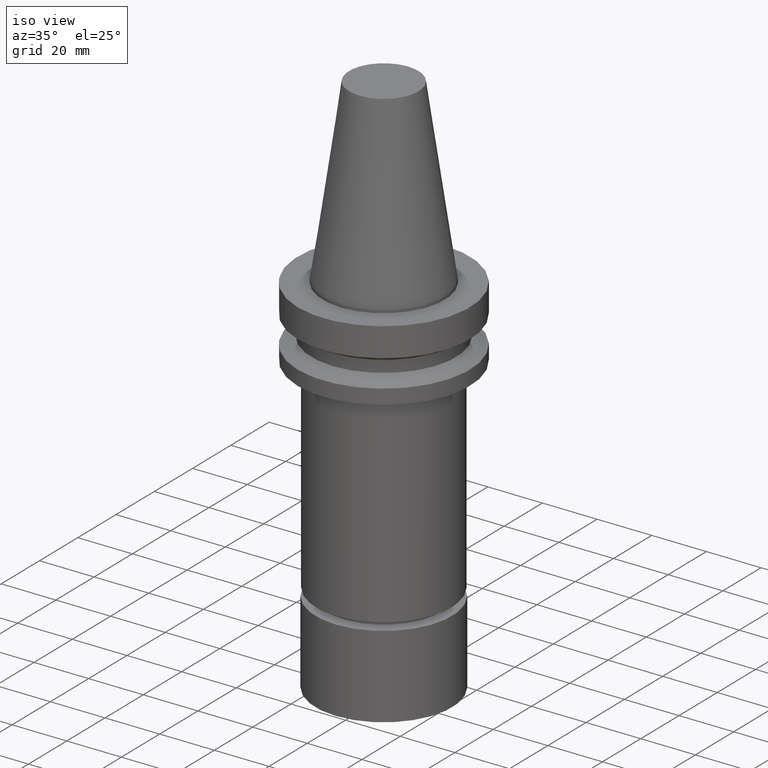
[diagram: clean part render]
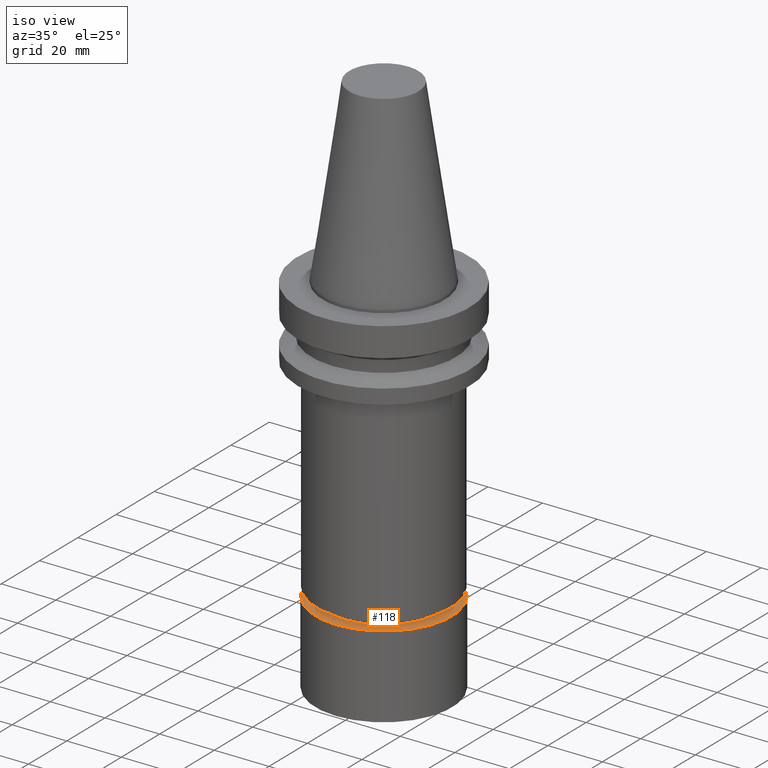
[diagram: same view with one face highlighted and labeled with its STEP entity id]
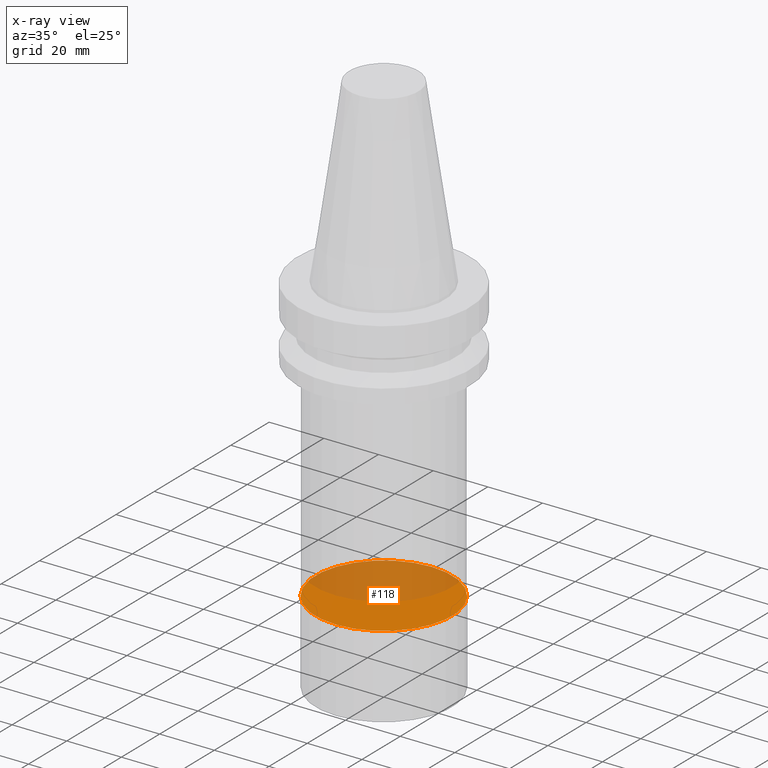
[diagram: x-ray of the same camera — body ghosted, the highlighted face saturated]
A machine part, iso view. The second image highlights one B-rep face of the part: STEP entity #118.
The next image is the same camera in x-ray: the body ghosted, the highlighted face saturated — about 49% of this face is hidden behind the body in this view.
In plain terms, the highlighted planar face has unit normal (-0, -0, 1).
Its self-contained STEP definition (entity closure, byte-faithful):
#99=EDGE_CURVE('Unnamed[1]',#235,#235,#236,.T.);
#118=ADVANCED_FACE('Unnamed[1]',(#265),#266,.T.);
#235=VERTEX_POINT('',#418);
#236=CIRCLE('',#419,24.9999999999999);
#265=FACE_OUTER_BOUND('',#455,.T.);
#266=PLANE('',#456);
#418=CARTESIAN_POINT('',(6.41714922753213E-015,25.0,-104.8));
#419=AXIS2_PLACEMENT_3D('',#614,#615,#616);
#455=EDGE_LOOP('',(#648));
#456=AXIS2_PLACEMENT_3D('',#649,#650,#651);
#614=CARTESIAN_POINT('',(6.41714922753213E-015,7.56307134857546E-014,-104.8));
#615=DIRECTION('',(6.12323399573677E-017,-8.98149397141931E-018,-1.0));
#616=DIRECTION('',(-4.27719483858603E-033,1.0,-8.98149397141931E-018));
#648=ORIENTED_EDGE('',*,*,#99,.F.);
#649=CARTESIAN_POINT('',(6.41714922753213E-015,12.5,-104.8));
#650=DIRECTION('',(-6.12323399573677E-017,-1.22464679914735E-016,1.0));
#651=DIRECTION('',(1.23259516440783E-032,-1.0,-1.22464679914735E-016));